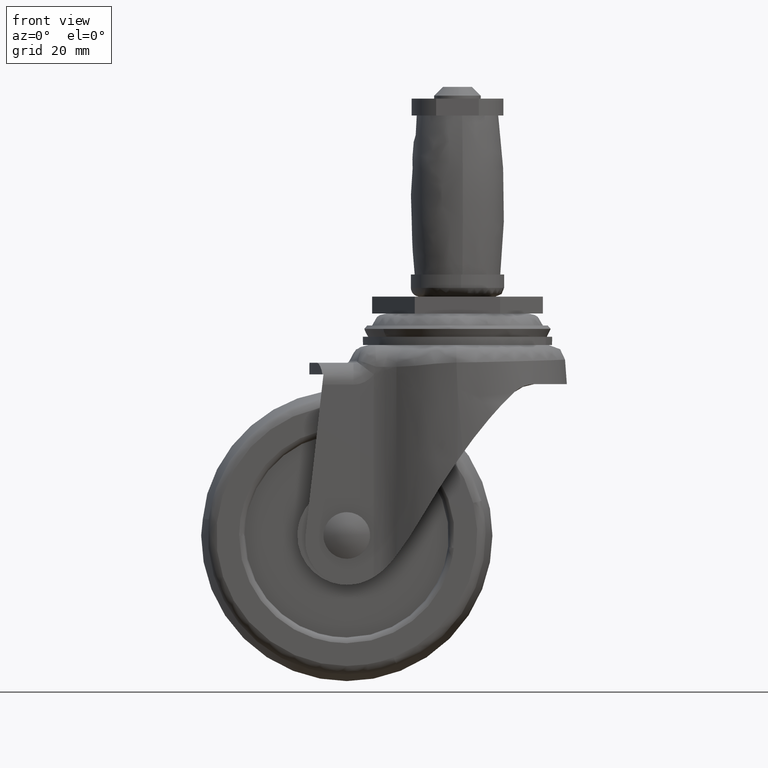
[diagram: clean part render]
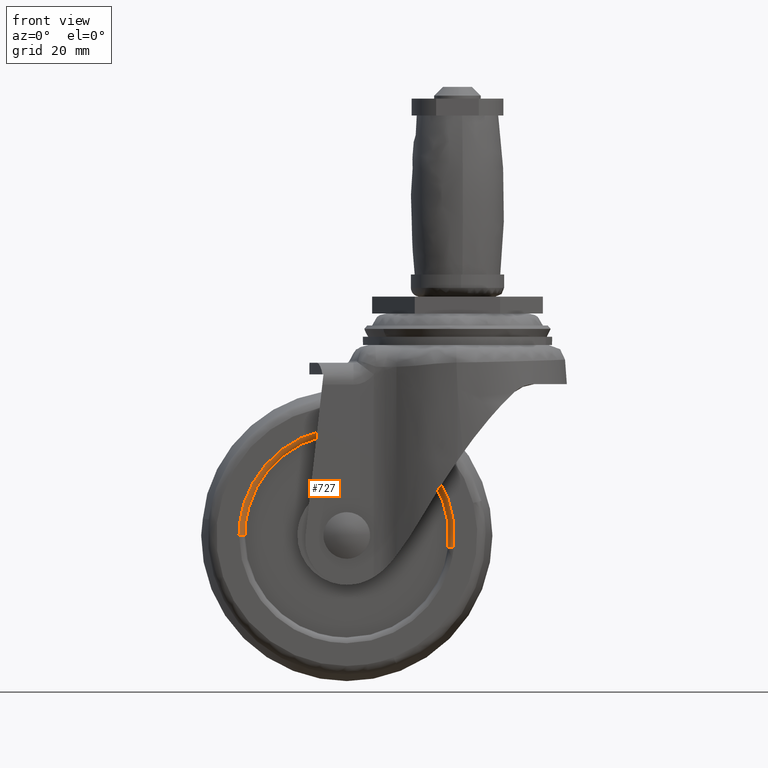
[diagram: same view with one face highlighted and labeled with its STEP entity id]
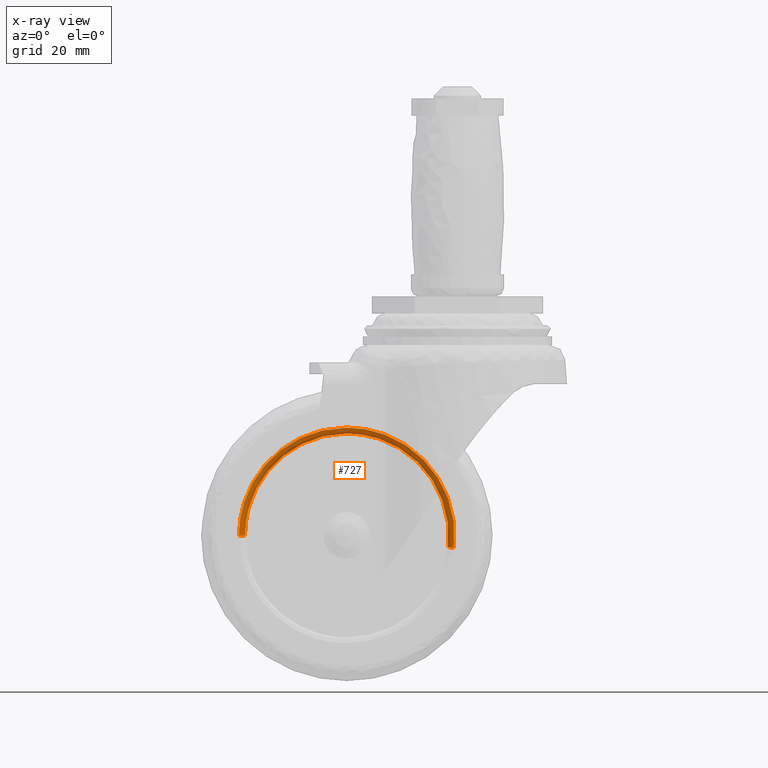
[diagram: x-ray of the same camera — body ghosted, the highlighted face saturated]
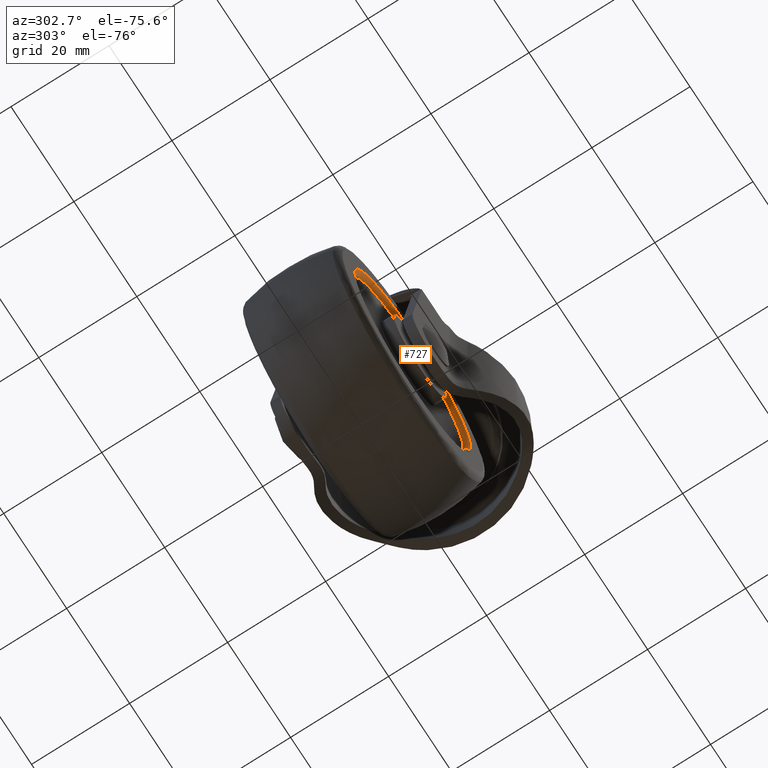
[diagram: same view with one face highlighted and labeled with its STEP entity id]
A machine part, front view. The second image highlights one B-rep face of the part: STEP entity #727.
The next image is the same camera in x-ray: the body ghosted, the highlighted face saturated — about 0% of this face is hidden behind the body in this view.
A second angle (auxiliary view) of the same face is appended — the face is thin or edge-on in the first view.
In plain terms, the highlighted face is a freeform B-spline surface patch.
Its self-contained STEP definition (entity closure, byte-faithful):
#602=CARTESIAN_POINT('',(-0.555044386172410,-9.997691281180893,-43.144491811170077));
#603=CARTESIAN_POINT('',(-0.430847428076289,-9.997691281180895,-42.076053507956885));
#604=CARTESIAN_POINT('',(-0.430847428076289,-9.997691281180890,-41.000421000000102));
#605=CARTESIAN_POINT('',(-0.430847428076285,-9.997691281180892,-22.431268428076397));
#606=CARTESIAN_POINT('',(-18.999999999999996,-9.997691281180890,-22.431268428076390));
#607=CARTESIAN_POINT('',(-37.569152571923709,-9.997691281180892,-22.431268428076379));
#608=CARTESIAN_POINT('',(-37.569152571923716,-9.997691281180890,-41.000421000000095));
#609=CARTESIAN_POINT('',(-1.694463026376205,-10.077435832562456,-43.012043986447075));
#610=CARTESIAN_POINT('',(-1.577938210847087,-10.077435832562454,-42.009607388202809));
#611=CARTESIAN_POINT('',(-1.577938210847087,-10.077435832562452,-41.000421000000095));
#612=CARTESIAN_POINT('',(-1.577938210847084,-10.077435832562454,-23.578359210847193));
#613=CARTESIAN_POINT('',(-19.0,-10.077435832562452,-23.578359210847200));
#614=CARTESIAN_POINT('',(-36.422061789152906,-10.077435832562454,-23.578359210847189));
#615=CARTESIAN_POINT('',(-36.422061789152913,-10.077435832562452,-41.000421000000095));
#616=CARTESIAN_POINT('',(-1.614826353881732,-8.930374908277925,-43.021301079202885));
#617=CARTESIAN_POINT('',(-1.497765314103350,-8.930374908277921,-42.014251465182660));
#618=CARTESIAN_POINT('',(-1.497765314103351,-8.930374908277921,-41.000421000000117));
#619=CARTESIAN_POINT('',(-1.497765314103347,-8.930374908277919,-23.498186314103457));
#620=CARTESIAN_POINT('',(-19.000000000000007,-8.930374908277921,-23.498186314103460));
#621=CARTESIAN_POINT('',(-36.502234685896639,-8.930374908277919,-23.498186314103457));
#622=CARTESIAN_POINT('',(-36.502234685896653,-8.930374908277921,-41.000421000000117));
#630=(BOUNDED_SURFACE()B_SPLINE_SURFACE(2,2,((#602,#609,#616),(#603,#610,#617),(#604,#611,#618),(#605,#612,#619),(#606,#613,#620),(#607,#614,#621),(#608,#615,#622)),.UNSPECIFIED.,.F.,.F.,.U.)B_SPLINE_SURFACE_WITH_KNOTS((3,2,2,3),(3,3),(0.0,2.461308000572669,33.227687348836817,63.994066697100983),(0.0,1.822371419939513),.UNSPECIFIED.)GEOMETRIC_REPRESENTATION_ITEM()RATIONAL_B_SPLINE_SURFACE(((0.870832044222559,0.569876211046966,0.866007937387246),(0.888744386727400,0.581598124526559,0.883821051740703),(0.910068600121476,0.595552780895942,0.905027136404591),(0.643515678490844,0.421119409926027,0.639950825309529),(0.910068600121476,0.595552780895942,0.905027136404591),(0.643515678490844,0.421119409926027,0.639950825309529),(0.910068600121476,0.595552780895942,0.905027136404591)))REPRESENTATION_ITEM('')SURFACE());
#631=CARTESIAN_POINT('',(-1.617243990277288,-9.000099000209477,-43.021022035842250));
#632=VERTEX_POINT('',#631);
#633=CARTESIAN_POINT('',(-19.0,-9.000098999999999,-23.500620000000200));
#634=VERTEX_POINT('',#633);
#635=CARTESIAN_POINT('',(-1.617243990277289,-9.000099000209477,-43.021022035842250));
#636=CARTESIAN_POINT('',(-1.500199000000098,-9.000098999999999,-42.014111481972954));
#637=CARTESIAN_POINT('',(-1.500199000000098,-9.000098999999999,-41.000421000000102));
#638=CARTESIAN_POINT('',(-1.500199000000098,-9.000098999999999,-23.500620000000197));
#639=CARTESIAN_POINT('',(-19.0,-9.000098999999999,-23.500620000000200));
#647=(BOUNDED_CURVE()B_SPLINE_CURVE(2,(#635,#636,#637,#638,#639),.UNSPECIFIED.,.F.,.U.)B_SPLINE_CURVE_WITH_KNOTS((3,2,3),(0.230000000000000,0.250000000000000,0.500000000000000),.UNSPECIFIED.)CURVE()GEOMETRIC_REPRESENTATION_ITEM()RATIONAL_B_SPLINE_CURVE((0.956886118190660,0.976568542494924,1.0,0.707106781186547,1.0))REPRESENTATION_ITEM(''));
#648=EDGE_CURVE('',#632,#634,#647,.T.);
#649=ORIENTED_EDGE('',*,*,#648,.F.);
#650=CARTESIAN_POINT('',(-0.623932354076219,-10.000099000000040,-43.136486265066956));
#651=VERTEX_POINT('',#650);
#652=CARTESIAN_POINT('',(-0.623932354076219,-10.000099000000043,-43.136486265066956));
#653=CARTESIAN_POINT('',(-1.617243989861141,-10.000098994842906,-43.021022035890624));
#654=CARTESIAN_POINT('',(-1.617243990277288,-9.000099000209477,-43.021022035842257));
#662=(BOUNDED_CURVE()B_SPLINE_CURVE(2,(#652,#653,#654),.UNSPECIFIED.,.F.,.U.)B_SPLINE_CURVE_WITH_KNOTS((3,3),(-1.726807294245813,-0.285995334470744),.UNSPECIFIED.)CURVE()GEOMETRIC_REPRESENTATION_ITEM()RATIONAL_B_SPLINE_CURVE((0.844728323438004,0.595760587678289,0.840342784783441))REPRESENTATION_ITEM(''));
#663=EDGE_CURVE('',#651,#632,#662,.T.);
#664=ORIENTED_EDGE('',*,*,#663,.F.);
#665=CARTESIAN_POINT('',(-19.0,-10.000099000000080,-22.500620000000200));
#666=VERTEX_POINT('',#665);
#667=CARTESIAN_POINT('',(-0.623932354076219,-10.000099000000041,-43.136486265066964));
#668=CARTESIAN_POINT('',(-0.500199000000100,-10.000099000000080,-42.072037311268183));
#669=CARTESIAN_POINT('',(-0.500199000000100,-10.000099000000080,-41.000421000000102));
#670=CARTESIAN_POINT('',(-0.500199000000100,-10.000099000000080,-22.500620000000204));
#671=CARTESIAN_POINT('',(-19.0,-10.000099000000080,-22.500620000000200));
#679=(BOUNDED_CURVE()B_SPLINE_CURVE(2,(#667,#668,#669,#670,#671),.UNSPECIFIED.,.F.,.U.)B_SPLINE_CURVE_WITH_KNOTS((3,2,3),(0.229999999996403,0.250000000000000,0.500000000000000),.UNSPECIFIED.)CURVE()GEOMETRIC_REPRESENTATION_ITEM()RATIONAL_B_SPLINE_CURVE((0.956886118183580,0.976568542490710,1.0,0.707106781186548,1.0))REPRESENTATION_ITEM(''));
#680=EDGE_CURVE('',#651,#666,#679,.T.);
#681=ORIENTED_EDGE('',*,*,#680,.T.);
#682=CARTESIAN_POINT('',(-37.499800998076878,-10.000099000000040,-41.000421000000102));
#683=VERTEX_POINT('',#682);
#684=CARTESIAN_POINT('',(-19.0,-10.000099000000080,-22.500620000000200));
#685=CARTESIAN_POINT('',(-37.499800999999806,-10.000099000000082,-22.500620000000200));
#686=CARTESIAN_POINT('',(-37.499800998076878,-10.000099000000040,-41.000421000000102));
#694=(BOUNDED_CURVE()B_SPLINE_CURVE(2,(#684,#685,#686),.UNSPECIFIED.,.F.,.U.)B_SPLINE_CURVE_WITH_KNOTS((3,3),(0.500000000000000,0.749999999999999),.UNSPECIFIED.)CURVE()GEOMETRIC_REPRESENTATION_ITEM()RATIONAL_B_SPLINE_CURVE((1.0,0.707106781186549,0.999999999999998))REPRESENTATION_ITEM(''));
#695=EDGE_CURVE('',#666,#683,#694,.T.);
#696=ORIENTED_EDGE('',*,*,#695,.T.);
#697=CARTESIAN_POINT('',(-36.499801000001241,-9.000100161110911,-41.000421000000102));
#698=VERTEX_POINT('',#697);
#699=CARTESIAN_POINT('',(-37.499800998076878,-10.000099000000041,-41.000421000000102));
#700=CARTESIAN_POINT('',(-36.499802161110125,-10.000098996153966,-41.000421000000109));
#701=CARTESIAN_POINT('',(-36.499801000001248,-9.000100161110911,-41.000421000000109));
#709=(BOUNDED_CURVE()B_SPLINE_CURVE(2,(#699,#700,#701),.UNSPECIFIED.,.F.,.U.)B_SPLINE_CURVE_WITH_KNOTS((3,3),(-1.726807295585006,-0.285996513918992),.UNSPECIFIED.)CURVE()GEOMETRIC_REPRESENTATION_ITEM()RATIONAL_B_SPLINE_CURVE((0.882788774800167,0.622603651500739,0.878205220431992))REPRESENTATION_ITEM(''));
#710=EDGE_CURVE('',#683,#698,#709,.T.);
#711=ORIENTED_EDGE('',*,*,#710,.T.);
#712=CARTESIAN_POINT('',(-19.0,-9.000098999999999,-23.500620000000200));
#713=CARTESIAN_POINT('',(-36.499801000000573,-9.000099580555455,-23.500620000000197));
#714=CARTESIAN_POINT('',(-36.499801000001241,-9.000100161110911,-41.000421000000102));
#722=(BOUNDED_CURVE()B_SPLINE_CURVE(2,(#712,#713,#714),.UNSPECIFIED.,.F.,.U.)B_SPLINE_CURVE_WITH_KNOTS((3,3),(0.500000000000000,0.750000000000000),.UNSPECIFIED.)CURVE()GEOMETRIC_REPRESENTATION_ITEM()RATIONAL_B_SPLINE_CURVE((1.0,0.707106781186547,1.0))REPRESENTATION_ITEM(''));
#723=EDGE_CURVE('',#634,#698,#722,.T.);
#724=ORIENTED_EDGE('',*,*,#723,.F.);
#725=EDGE_LOOP('',(#649,#664,#681,#696,#711,#724));
#726=FACE_OUTER_BOUND('',#725,.T.);
#727=ADVANCED_FACE('',(#726),#630,.T.);